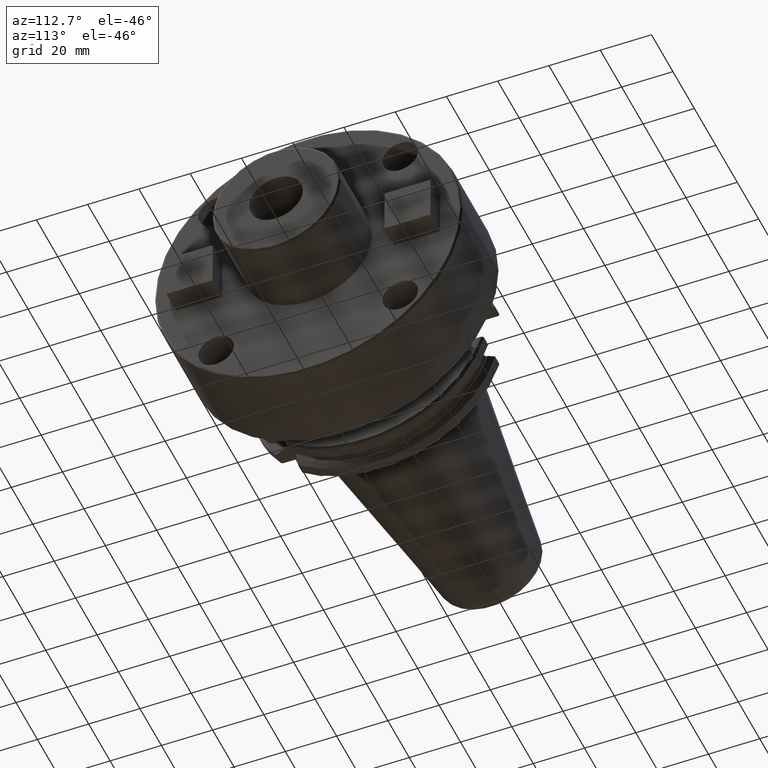
[diagram: clean part render]
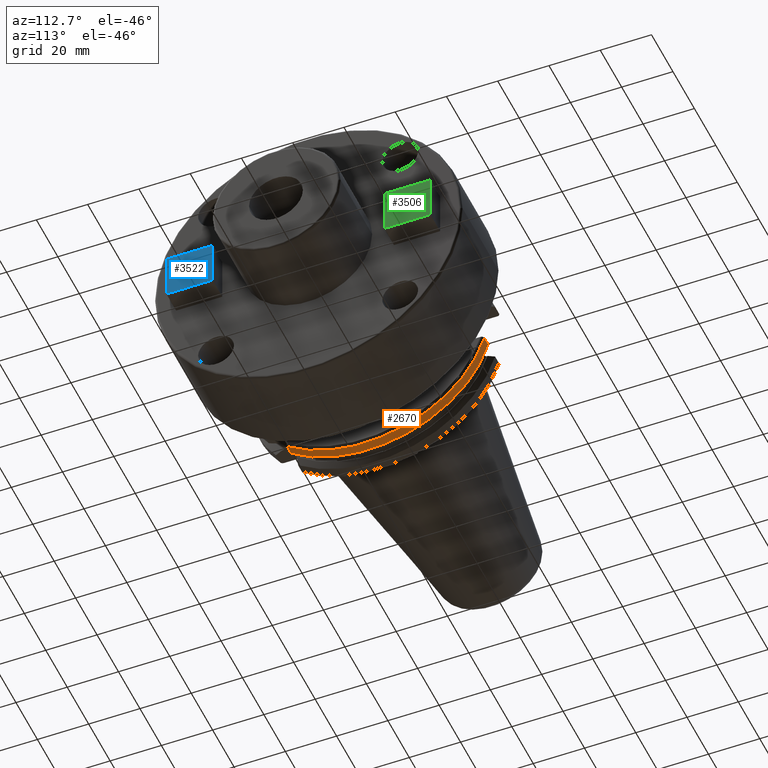
[diagram: same view with three faces highlighted in distinct colors, each labeled with its STEP entity id]
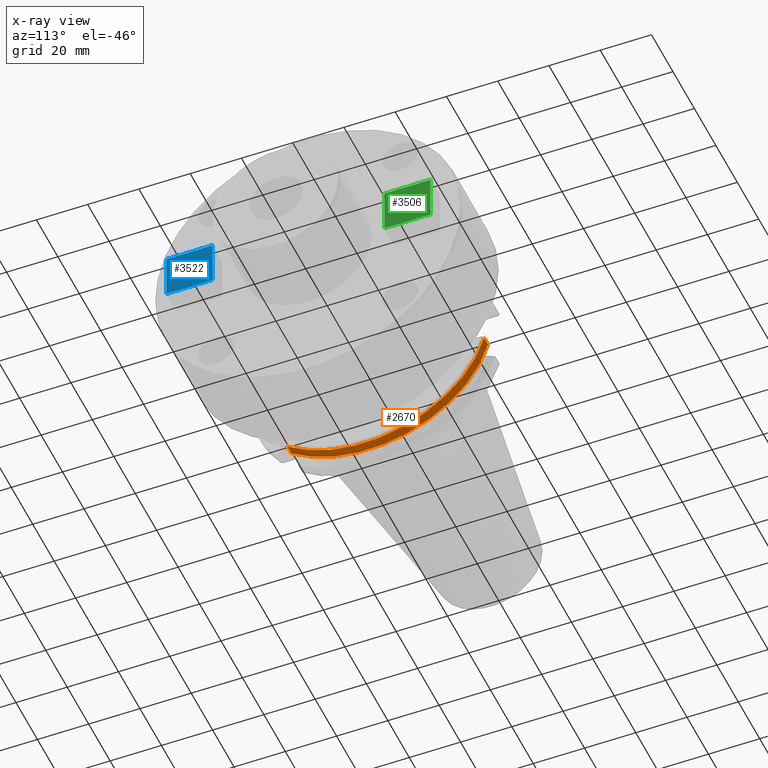
[diagram: x-ray of the same camera — body ghosted, the three highlighted faces saturated]
A machine part, auxiliary view with three faces highlighted in distinct colors.
The next image is the same camera in x-ray (body ghosted, the three faces saturated) — at least one of them is partly hidden behind the body in this view.
Their STEP definitions:

[orange] entity #2670 — the highlighted cylindrical surface (partial cylindrical patch) has radius 48.7375 mm, axis along (1, 0, 0).
#505=DIRECTION('',(1.E0,0.E0,0.E0));
#506=VECTOR('',#505,3.634621614173E0);
#507=CARTESIAN_POINT('',(1.441537838583E1,4.699929686974E1,-1.29E1));
#508=LINE('',#507,#506);
#509=CARTESIAN_POINT('',(1.441537838583E1,0.E0,0.E0));
#510=DIRECTION('',(1.E0,0.E0,0.E0));
#511=DIRECTION('',(0.E0,-6.124647345473E-1,-7.904979120376E-1));
#512=AXIS2_PLACEMENT_3D('',#509,#510,#511);
#514=DIRECTION('',(1.E0,0.E0,0.E0));
#515=VECTOR('',#514,3.634621614173E0);
#516=CARTESIAN_POINT('',(1.441537838583E1,-2.985E1,-3.852689198793E1));
#517=LINE('',#516,#515);
#518=CARTESIAN_POINT('',(1.805E1,0.E0,0.E0));
#519=DIRECTION('',(-1.E0,0.E0,0.E0));
#520=DIRECTION('',(0.E0,9.643354064066E-1,-2.646832521159E-1));
#521=AXIS2_PLACEMENT_3D('',#518,#519,#520);
#620=CARTESIAN_POINT('',(1.441537838583E1,4.699929686974E1,-1.29E1));
#632=CARTESIAN_POINT('',(1.441537838583E1,-2.985E1,-3.852689198793E1));
#1857=VERTEX_POINT('',#620);
#1891=CARTESIAN_POINT('',(1.805E1,4.699929686974E1,-1.29E1));
#1892=VERTEX_POINT('',#1891);
#1914=CARTESIAN_POINT('',(1.805E1,-2.985E1,-3.852689198793E1));
#1915=VERTEX_POINT('',#1914);
#1935=VERTEX_POINT('',#632);
#2658=CARTESIAN_POINT('',(-1.076325E2,0.E0,0.E0));
#2659=DIRECTION('',(1.E0,0.E0,0.E0));
#2660=DIRECTION('',(0.E0,-1.E0,0.E0));
#2661=AXIS2_PLACEMENT_3D('',#2658,#2659,#2660);
#2662=CYLINDRICAL_SURFACE('',#2661,4.87375E1);
#2663=ORIENTED_EDGE('',*,*,#2497,.F.);
#2665=ORIENTED_EDGE('',*,*,#2664,.F.);
#2666=ORIENTED_EDGE('',*,*,#2592,.T.);
#2667=ORIENTED_EDGE('',*,*,#2638,.F.);
#2668=EDGE_LOOP('',(#2663,#2665,#2666,#2667));
#2669=FACE_OUTER_BOUND('',#2668,.F.);
#2670=ADVANCED_FACE('',(#2669),#2662,.T.);
#513=CIRCLE('',#512,4.87375E1);
#522=CIRCLE('',#521,4.87375E1);
#2497=EDGE_CURVE('',#1857,#1892,#508,.T.);
#2592=EDGE_CURVE('',#1935,#1915,#517,.T.);
#2638=EDGE_CURVE('',#1892,#1915,#522,.T.);
#2664=EDGE_CURVE('',#1935,#1857,#513,.T.);

[blue] entity #3522 — the highlighted planar face has unit normal (1, 0, 0).
#1397=DIRECTION('',(0.E0,-1.E0,0.E0));
#1398=VECTOR('',#1397,1.8E1);
#1399=CARTESIAN_POINT('',(7.9E1,-3.35E1,9.E0));
#1400=LINE('',#1399,#1398);
#1401=DIRECTION('',(0.E0,0.E0,1.E0));
#1402=VECTOR('',#1401,1.8E1);
#1403=CARTESIAN_POINT('',(7.9E1,-3.35E1,-9.E0));
#1404=LINE('',#1403,#1402);
#1405=DIRECTION('',(0.E0,1.E0,0.E0));
#1406=VECTOR('',#1405,1.8E1);
#1407=CARTESIAN_POINT('',(7.9E1,-5.15E1,-9.E0));
#1408=LINE('',#1407,#1406);
#1409=DIRECTION('',(0.E0,0.E0,-1.E0));
#1410=VECTOR('',#1409,1.8E1);
#1411=CARTESIAN_POINT('',(7.9E1,-5.15E1,9.E0));
#1412=LINE('',#1411,#1410);
#1980=CARTESIAN_POINT('',(7.9E1,-3.35E1,9.E0));
#1981=CARTESIAN_POINT('',(7.9E1,-5.15E1,9.E0));
#1982=VERTEX_POINT('',#1980);
#1983=VERTEX_POINT('',#1981);
#1984=CARTESIAN_POINT('',(7.9E1,-5.15E1,-9.E0));
#1985=VERTEX_POINT('',#1984);
#1986=CARTESIAN_POINT('',(7.9E1,-3.35E1,-9.E0));
#1987=VERTEX_POINT('',#1986);
#3507=CARTESIAN_POINT('',(7.9E1,0.E0,0.E0));
#3508=DIRECTION('',(1.E0,0.E0,0.E0));
#3509=DIRECTION('',(0.E0,0.E0,-1.E0));
#3510=AXIS2_PLACEMENT_3D('',#3507,#3508,#3509);
#3511=PLANE('',#3510);
#3513=ORIENTED_EDGE('',*,*,#3512,.F.);
#3515=ORIENTED_EDGE('',*,*,#3514,.F.);
#3517=ORIENTED_EDGE('',*,*,#3516,.F.);
#3519=ORIENTED_EDGE('',*,*,#3518,.F.);
#3520=EDGE_LOOP('',(#3513,#3515,#3517,#3519));
#3521=FACE_OUTER_BOUND('',#3520,.F.);
#3522=ADVANCED_FACE('',(#3521),#3511,.T.);
#3512=EDGE_CURVE('',#1982,#1983,#1400,.T.);
#3514=EDGE_CURVE('',#1987,#1982,#1404,.T.);
#3516=EDGE_CURVE('',#1985,#1987,#1408,.T.);
#3518=EDGE_CURVE('',#1983,#1985,#1412,.T.);

[green] entity #3506 — the highlighted planar face has unit normal (1, 0, 0).
#1381=DIRECTION('',(0.E0,-1.E0,0.E0));
#1382=VECTOR('',#1381,1.8E1);
#1383=CARTESIAN_POINT('',(7.9E1,5.15E1,9.E0));
#1384=LINE('',#1383,#1382);
#1385=DIRECTION('',(0.E0,0.E0,1.E0));
#1386=VECTOR('',#1385,1.8E1);
#1387=CARTESIAN_POINT('',(7.9E1,5.15E1,-9.E0));
#1388=LINE('',#1387,#1386);
#1389=DIRECTION('',(0.E0,1.E0,0.E0));
#1390=VECTOR('',#1389,1.8E1);
#1391=CARTESIAN_POINT('',(7.9E1,3.35E1,-9.E0));
#1392=LINE('',#1391,#1390);
#1393=DIRECTION('',(0.E0,0.E0,-1.E0));
#1394=VECTOR('',#1393,1.8E1);
#1395=CARTESIAN_POINT('',(7.9E1,3.35E1,9.E0));
#1396=LINE('',#1395,#1394);
#1972=CARTESIAN_POINT('',(7.9E1,5.15E1,9.E0));
#1973=CARTESIAN_POINT('',(7.9E1,3.35E1,9.E0));
#1974=VERTEX_POINT('',#1972);
#1975=VERTEX_POINT('',#1973);
#1976=CARTESIAN_POINT('',(7.9E1,3.35E1,-9.E0));
#1977=VERTEX_POINT('',#1976);
#1978=CARTESIAN_POINT('',(7.9E1,5.15E1,-9.E0));
#1979=VERTEX_POINT('',#1978);
#3495=CARTESIAN_POINT('',(7.9E1,0.E0,0.E0));
#3496=DIRECTION('',(1.E0,0.E0,0.E0));
#3497=DIRECTION('',(0.E0,0.E0,-1.E0));
#3498=AXIS2_PLACEMENT_3D('',#3495,#3496,#3497);
#3499=PLANE('',#3498);
#3500=ORIENTED_EDGE('',*,*,#3447,.F.);
#3501=ORIENTED_EDGE('',*,*,#3462,.F.);
#3502=ORIENTED_EDGE('',*,*,#3476,.F.);
#3503=ORIENTED_EDGE('',*,*,#3489,.F.);
#3504=EDGE_LOOP('',(#3500,#3501,#3502,#3503));
#3505=FACE_OUTER_BOUND('',#3504,.F.);
#3506=ADVANCED_FACE('',(#3505),#3499,.T.);
#3447=EDGE_CURVE('',#1974,#1975,#1384,.T.);
#3462=EDGE_CURVE('',#1979,#1974,#1388,.T.);
#3476=EDGE_CURVE('',#1977,#1979,#1392,.T.);
#3489=EDGE_CURVE('',#1975,#1977,#1396,.T.);